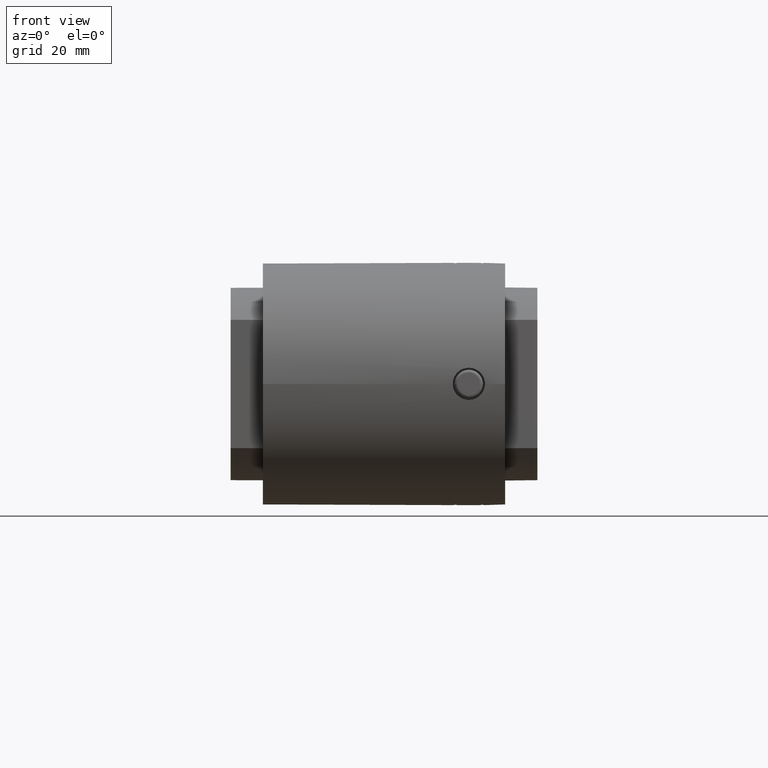
[diagram: clean part render]
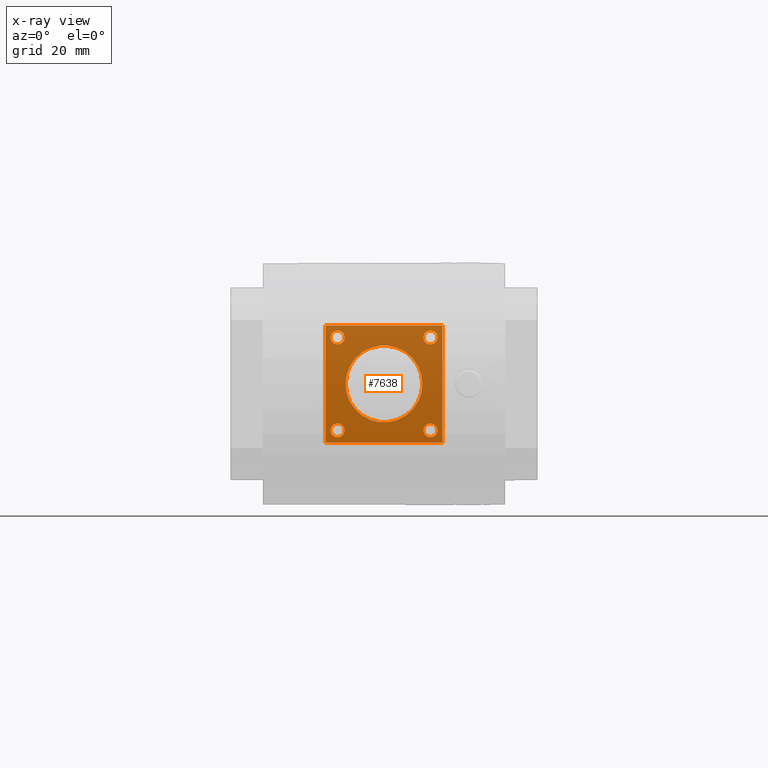
[diagram: x-ray — body ghosted, one internal face saturated and labeled with its STEP entity id]
A machine part, front view, then the same camera in x-ray: the body is ghosted and one INTERNAL B-rep face — a face not visible from any outside direction — is saturated and labeled: STEP entity #7638.
In plain terms, the highlighted planar face has unit normal (-0, -1, 0).
Its self-contained STEP definition (entity closure, byte-faithful):
#6810=CARTESIAN_POINT('',(-23.275000000000006,30.750000000000078,13.199999999999999));
#6811=VERTEX_POINT('',#6810);
#6820=CARTESIAN_POINT('',(-23.275000000000006,30.750000000000078,9.800000000000001));
#6821=VERTEX_POINT('',#6820);
#6822=CARTESIAN_POINT('',(-23.275000000000006,30.750000000000078,11.500000000000000));
#6823=DIRECTION('',(0.0,1.0,0.0));
#6824=DIRECTION('',(0.0,0.0,1.0));
#6825=AXIS2_PLACEMENT_3D('',#6822,#6823,#6824);
#6826=CIRCLE('',#6825,1.700000000000000);
#6827=EDGE_CURVE('',#6811,#6821,#6826,.T.);
#6852=CARTESIAN_POINT('',(-23.275000000000006,30.750000000000078,-9.800000000000001));
#6853=VERTEX_POINT('',#6852);
#6862=CARTESIAN_POINT('',(-23.275000000000006,30.750000000000078,-13.199999999999999));
#6863=VERTEX_POINT('',#6862);
#6864=CARTESIAN_POINT('',(-23.275000000000006,30.750000000000078,-11.500000000000000));
#6865=DIRECTION('',(0.0,1.0,0.0));
#6866=DIRECTION('',(0.0,0.0,1.0));
#6867=AXIS2_PLACEMENT_3D('',#6864,#6865,#6866);
#6868=CIRCLE('',#6867,1.700000000000000);
#6869=EDGE_CURVE('',#6853,#6863,#6868,.T.);
#6894=CARTESIAN_POINT('',(-0.275000000000006,30.750000000000078,13.199999999999999));
#6895=VERTEX_POINT('',#6894);
#6904=CARTESIAN_POINT('',(-0.275000000000006,30.750000000000078,9.800000000000001));
#6905=VERTEX_POINT('',#6904);
#6906=CARTESIAN_POINT('',(-0.275000000000006,30.750000000000078,11.500000000000000));
#6907=DIRECTION('',(0.0,1.0,0.0));
#6908=DIRECTION('',(0.0,0.0,1.0));
#6909=AXIS2_PLACEMENT_3D('',#6906,#6907,#6908);
#6910=CIRCLE('',#6909,1.700000000000000);
#6911=EDGE_CURVE('',#6895,#6905,#6910,.T.);
#6936=CARTESIAN_POINT('',(-0.275000000000006,30.750000000000078,-9.800000000000001));
#6937=VERTEX_POINT('',#6936);
#6946=CARTESIAN_POINT('',(-0.275000000000006,30.750000000000078,-13.199999999999999));
#6947=VERTEX_POINT('',#6946);
#6948=CARTESIAN_POINT('',(-0.275000000000006,30.750000000000078,-11.500000000000000));
#6949=DIRECTION('',(0.0,1.0,0.0));
#6950=DIRECTION('',(0.0,0.0,1.0));
#6951=AXIS2_PLACEMENT_3D('',#6948,#6949,#6950);
#6952=CIRCLE('',#6951,1.700000000000000);
#6953=EDGE_CURVE('',#6937,#6947,#6952,.T.);
#7064=CARTESIAN_POINT('',(-21.275000000000148,30.750000000000057,0.0));
#7065=VERTEX_POINT('',#7064);
#7081=CARTESIAN_POINT('',(-2.275000000000146,30.750000000000057,-1.163376E-015));
#7082=VERTEX_POINT('',#7081);
#7089=CARTESIAN_POINT('',(-11.775000000000146,30.750000000000057,0.0));
#7090=DIRECTION('',(0.0,-1.0,0.0));
#7091=DIRECTION('',(-1.0,0.0,0.0));
#7092=AXIS2_PLACEMENT_3D('',#7089,#7090,#7091);
#7093=CIRCLE('',#7092,9.500000000000000);
#7094=EDGE_CURVE('',#7065,#7082,#7093,.T.);
#7443=CARTESIAN_POINT('',(-11.775000000000146,30.750000000000057,0.0));
#7444=DIRECTION('',(0.0,-1.0,0.0));
#7445=DIRECTION('',(-1.0,0.0,0.0));
#7446=AXIS2_PLACEMENT_3D('',#7443,#7444,#7445);
#7447=CIRCLE('',#7446,9.500000000000000);
#7448=EDGE_CURVE('',#7082,#7065,#7447,.T.);
#7555=CARTESIAN_POINT('',(-11.775000000000006,30.750000000000057,0.0));
#7556=DIRECTION('',(0.0,1.0,0.0));
#7557=DIRECTION('',(0.0,0.0,1.0));
#7558=AXIS2_PLACEMENT_3D('',#7555,#7556,#7557);
#7559=PLANE('',#7558);
#7560=CARTESIAN_POINT('',(2.724999999999994,30.750000000000057,14.500000000000000));
#7561=VERTEX_POINT('',#7560);
#7562=CARTESIAN_POINT('',(2.724999999999994,30.750000000000057,-14.500000000000000));
#7563=VERTEX_POINT('',#7562);
#7564=CARTESIAN_POINT('',(2.724999999999994,30.750000000000057,14.500000000000000));
#7565=DIRECTION('',(0.0,0.0,-1.0));
#7566=VECTOR('',#7565,29.0);
#7567=LINE('',#7564,#7566);
#7568=EDGE_CURVE('',#7561,#7563,#7567,.T.);
#7569=ORIENTED_EDGE('',*,*,#7568,.T.);
#7570=CARTESIAN_POINT('',(-26.275000000000006,30.750000000000057,-14.500000000000000));
#7571=VERTEX_POINT('',#7570);
#7572=CARTESIAN_POINT('',(2.724999999999994,30.750000000000057,-14.500000000000000));
#7573=DIRECTION('',(-1.0,0.0,0.0));
#7574=VECTOR('',#7573,29.0);
#7575=LINE('',#7572,#7574);
#7576=EDGE_CURVE('',#7563,#7571,#7575,.T.);
#7577=ORIENTED_EDGE('',*,*,#7576,.T.);
#7578=CARTESIAN_POINT('',(-26.275000000000006,30.750000000000057,14.500000000000000));
#7579=VERTEX_POINT('',#7578);
#7580=CARTESIAN_POINT('',(-26.275000000000006,30.750000000000057,-14.500000000000000));
#7581=DIRECTION('',(0.0,0.0,1.0));
#7582=VECTOR('',#7581,29.0);
#7583=LINE('',#7580,#7582);
#7584=EDGE_CURVE('',#7571,#7579,#7583,.T.);
#7585=ORIENTED_EDGE('',*,*,#7584,.T.);
#7586=CARTESIAN_POINT('',(-26.275000000000006,30.750000000000057,14.500000000000000));
#7587=DIRECTION('',(1.0,0.0,0.0));
#7588=VECTOR('',#7587,29.0);
#7589=LINE('',#7586,#7588);
#7590=EDGE_CURVE('',#7579,#7561,#7589,.T.);
#7591=ORIENTED_EDGE('',*,*,#7590,.T.);
#7592=EDGE_LOOP('',(#7569,#7577,#7585,#7591));
#7593=FACE_OUTER_BOUND('',#7592,.T.);
#7594=ORIENTED_EDGE('',*,*,#7094,.T.);
#7595=ORIENTED_EDGE('',*,*,#7448,.T.);
#7596=EDGE_LOOP('',(#7594,#7595));
#7597=FACE_BOUND('',#7596,.T.);
#7598=CARTESIAN_POINT('',(-23.275000000000006,30.750000000000078,11.500000000000000));
#7599=DIRECTION('',(0.0,1.0,0.0));
#7600=DIRECTION('',(0.0,0.0,1.0));
#7601=AXIS2_PLACEMENT_3D('',#7598,#7599,#7600);
#7602=CIRCLE('',#7601,1.700000000000000);
#7603=EDGE_CURVE('',#6821,#6811,#7602,.T.);
#7604=ORIENTED_EDGE('',*,*,#7603,.F.);
#7605=ORIENTED_EDGE('',*,*,#6827,.F.);
#7606=EDGE_LOOP('',(#7604,#7605));
#7607=FACE_BOUND('',#7606,.T.);
#7608=CARTESIAN_POINT('',(-23.275000000000006,30.750000000000078,-11.500000000000000));
#7609=DIRECTION('',(0.0,1.0,0.0));
#7610=DIRECTION('',(0.0,0.0,1.0));
#7611=AXIS2_PLACEMENT_3D('',#7608,#7609,#7610);
#7612=CIRCLE('',#7611,1.700000000000000);
#7613=EDGE_CURVE('',#6863,#6853,#7612,.T.);
#7614=ORIENTED_EDGE('',*,*,#7613,.F.);
#7615=ORIENTED_EDGE('',*,*,#6869,.F.);
#7616=EDGE_LOOP('',(#7614,#7615));
#7617=FACE_BOUND('',#7616,.T.);
#7618=CARTESIAN_POINT('',(-0.275000000000006,30.750000000000078,11.500000000000000));
#7619=DIRECTION('',(0.0,1.0,0.0));
#7620=DIRECTION('',(0.0,0.0,1.0));
#7621=AXIS2_PLACEMENT_3D('',#7618,#7619,#7620);
#7622=CIRCLE('',#7621,1.700000000000000);
#7623=EDGE_CURVE('',#6905,#6895,#7622,.T.);
#7624=ORIENTED_EDGE('',*,*,#7623,.F.);
#7625=ORIENTED_EDGE('',*,*,#6911,.F.);
#7626=EDGE_LOOP('',(#7624,#7625));
#7627=FACE_BOUND('',#7626,.T.);
#7628=CARTESIAN_POINT('',(-0.275000000000006,30.750000000000078,-11.500000000000000));
#7629=DIRECTION('',(0.0,1.0,0.0));
#7630=DIRECTION('',(0.0,0.0,1.0));
#7631=AXIS2_PLACEMENT_3D('',#7628,#7629,#7630);
#7632=CIRCLE('',#7631,1.700000000000000);
#7633=EDGE_CURVE('',#6947,#6937,#7632,.T.);
#7634=ORIENTED_EDGE('',*,*,#7633,.F.);
#7635=ORIENTED_EDGE('',*,*,#6953,.F.);
#7636=EDGE_LOOP('',(#7634,#7635));
#7637=FACE_BOUND('',#7636,.T.);
#7638=ADVANCED_FACE('',(#7593,#7597,#7607,#7617,#7627,#7637),#7559,.T.);